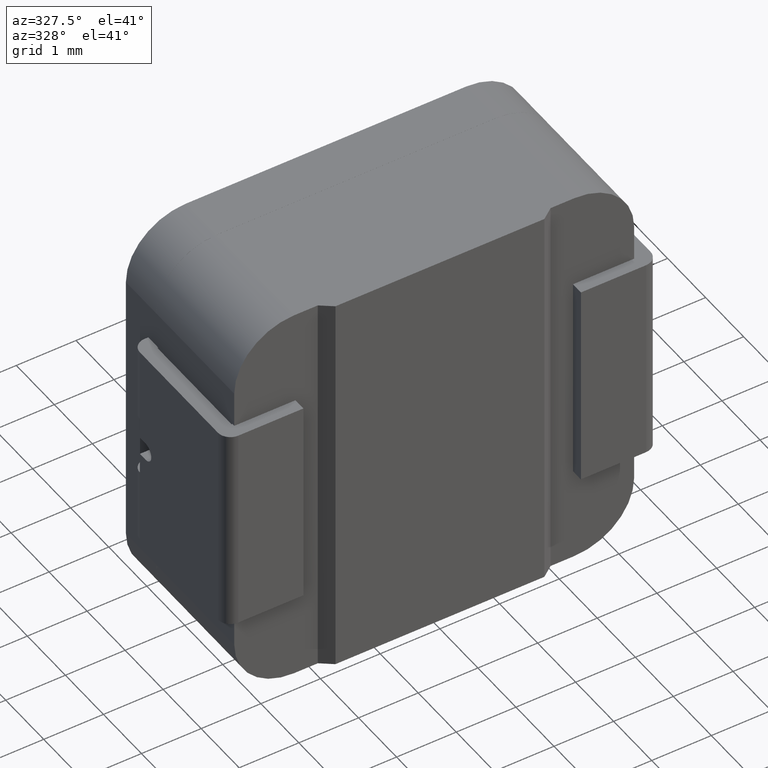
[diagram: clean part render]
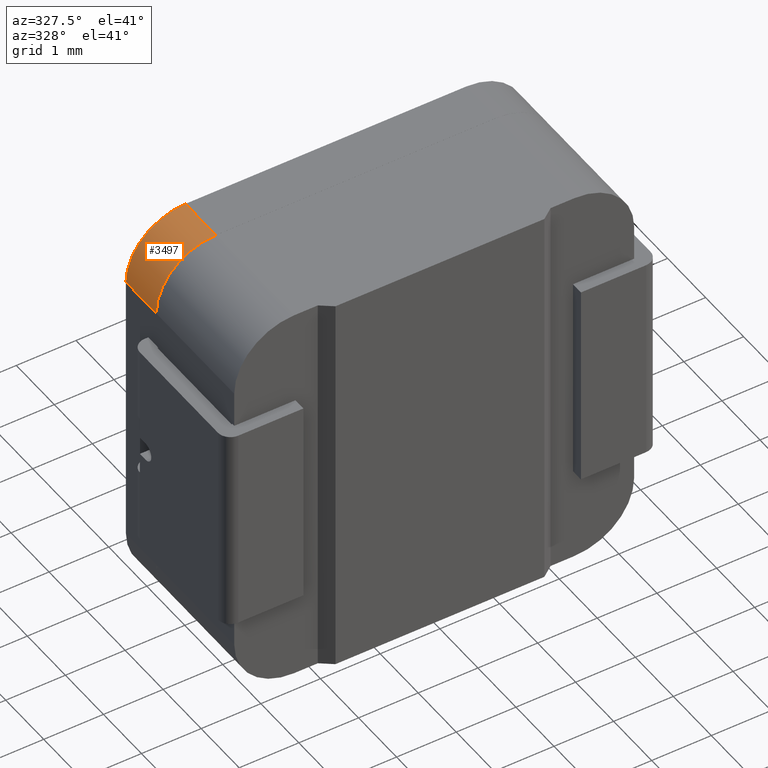
[diagram: same view with one face highlighted and labeled with its STEP entity id]
A machine part, auxiliary view. The second image highlights one B-rep face of the part: STEP entity #3497.
In plain terms, the highlighted cylindrical surface (partial cylindrical patch) has radius 1 mm, axis along (0, -1, 0).
Its self-contained STEP definition (entity closure, byte-faithful):
#228 = DIRECTION ( 'NONE',  ( -0.0000000000000000000, 1.000000000000000000, -0.0000000000000000000 ) ) ;
#282 = AXIS2_PLACEMENT_3D ( 'NONE', #2486, #5038, #3030 ) ;
#494 = DIRECTION ( 'NONE',  ( 0.0000000000000000000, 0.0000000000000000000, 1.000000000000000000 ) ) ;
#755 = ORIENTED_EDGE ( 'NONE', *, *, #2208, .F. ) ;
#765 = AXIS2_PLACEMENT_3D ( 'NONE', #5210, #2634, #494 ) ;
#833 = VERTEX_POINT ( 'NONE', #2929 ) ;
#848 = DIRECTION ( 'NONE',  ( 0.0000000000000000000, -1.000000000000000000, 0.0000000000000000000 ) ) ;
#881 = ORIENTED_EDGE ( 'NONE', *, *, #2647, .F. ) ;
#1186 = CARTESIAN_POINT ( 'NONE',  ( -2.350000000000000089, 3.000000000000000000, 2.349999999999999645 ) ) ;
#1256 = CARTESIAN_POINT ( 'NONE',  ( -2.350000000000000089, 3.000000000000000000, 3.349999999999999645 ) ) ;
#1362 = CARTESIAN_POINT ( 'NONE',  ( -3.350000000000000089, 2.201000000000000068, 2.349999999999999645 ) ) ;
#1499 = CYLINDRICAL_SURFACE ( 'NONE', #4868, 1.000000000000000000 ) ;
#1552 = EDGE_CURVE ( 'NONE', #5326, #6477, #6459, .T. ) ;
#1825 = VECTOR ( 'NONE', #228, 1000.000000000000000 ) ;
#2036 = CARTESIAN_POINT ( 'NONE',  ( -3.350000000000000089, 3.000000000000000000, 2.349999999999999645 ) ) ;
#2095 = CIRCLE ( 'NONE', #282, 1.000000000000000000 ) ;
#2208 = EDGE_CURVE ( 'NONE', #6477, #833, #4609, .T. ) ;
#2486 = CARTESIAN_POINT ( 'NONE',  ( -2.350000000000000089, 2.201000000000000068, 2.349999999999999645 ) ) ;
#2531 = VECTOR ( 'NONE', #848, 1000.000000000000000 ) ;
#2634 = DIRECTION ( 'NONE',  ( -0.0000000000000000000, 1.000000000000000000, 0.0000000000000000000 ) ) ;
#2647 = EDGE_CURVE ( 'NONE', #833, #6506, #2095, .T. ) ;
#2929 = CARTESIAN_POINT ( 'NONE',  ( -2.350000000000000089, 2.201000000000000068, 3.349999999999999645 ) ) ;
#2984 = EDGE_CURVE ( 'NONE', #6506, #5326, #3224, .T. ) ;
#3030 = DIRECTION ( 'NONE',  ( 0.0000000000000000000, 0.0000000000000000000, 1.000000000000000000 ) ) ;
#3218 = DIRECTION ( 'NONE',  ( 0.0000000000000000000, -1.000000000000000000, 0.0000000000000000000 ) ) ;
#3220 = ORIENTED_EDGE ( 'NONE', *, *, #1552, .F. ) ;
#3224 = LINE ( 'NONE', #6442, #1825 ) ;
#3497 = ADVANCED_FACE ( 'NONE', ( #4190 ), #1499, .T. ) ;
#4120 = EDGE_LOOP ( 'NONE', ( #3220, #5481, #881, #755 ) ) ;
#4190 = FACE_OUTER_BOUND ( 'NONE', #4120, .T. ) ;
#4609 = LINE ( 'NONE', #5329, #2531 ) ;
#4826 = DIRECTION ( 'NONE',  ( 0.0000000000000000000, 0.0000000000000000000, -1.000000000000000000 ) ) ;
#4868 = AXIS2_PLACEMENT_3D ( 'NONE', #1186, #3218, #4826 ) ;
#5038 = DIRECTION ( 'NONE',  ( 0.0000000000000000000, -1.000000000000000000, -0.0000000000000000000 ) ) ;
#5210 = CARTESIAN_POINT ( 'NONE',  ( -2.350000000000000089, 3.000000000000000000, 2.349999999999999645 ) ) ;
#5326 = VERTEX_POINT ( 'NONE', #2036 ) ;
#5329 = CARTESIAN_POINT ( 'NONE',  ( -2.350000000000000089, 3.000000000000000000, 3.349999999999999645 ) ) ;
#5481 = ORIENTED_EDGE ( 'NONE', *, *, #2984, .F. ) ;
#6442 = CARTESIAN_POINT ( 'NONE',  ( -3.350000000000000089, 3.000000000000000000, 2.349999999999999645 ) ) ;
#6459 = CIRCLE ( 'NONE', #765, 1.000000000000000000 ) ;
#6477 = VERTEX_POINT ( 'NONE', #1256 ) ;
#6506 = VERTEX_POINT ( 'NONE', #1362 ) ;